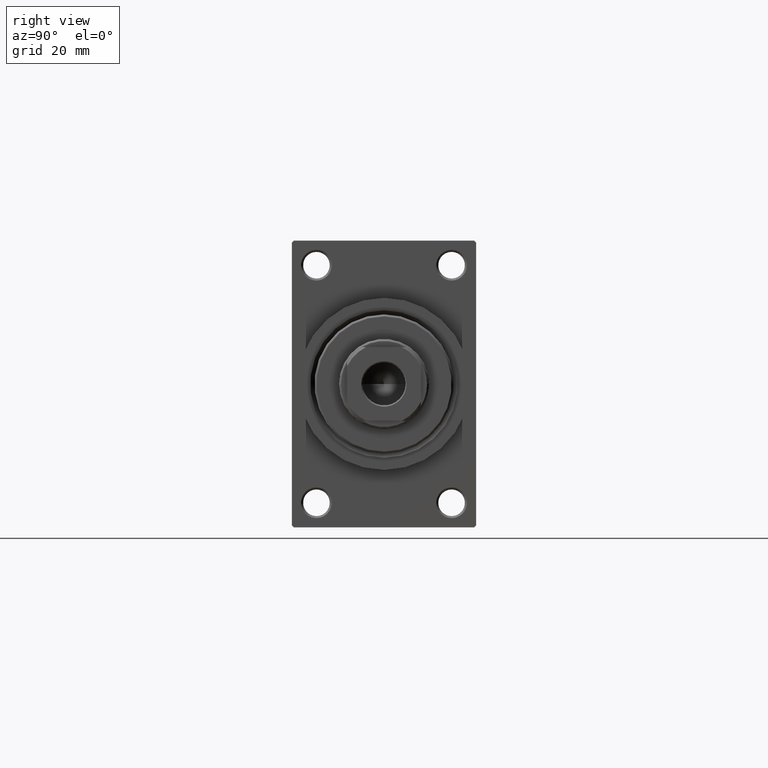
[diagram: clean part render]
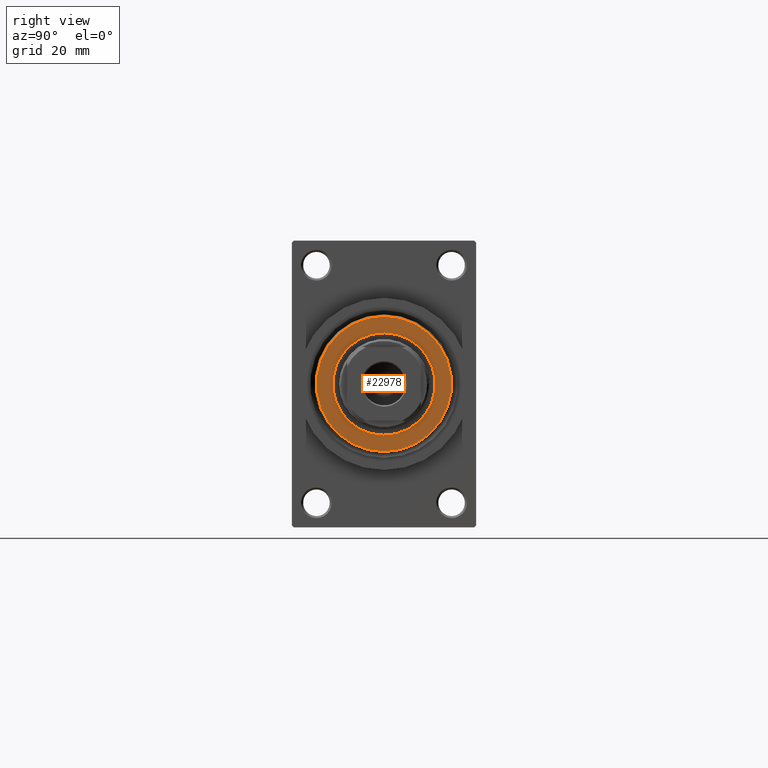
[diagram: same view with one face highlighted and labeled with its STEP entity id]
A machine part, right view. The second image highlights one B-rep face of the part: STEP entity #22978.
In plain terms, the highlighted planar face has unit normal (1, -0, -0).
Its self-contained STEP definition (entity closure, byte-faithful):
#313 = EDGE_CURVE ( 'NONE', #45140, #8718, #30360, .T. ) ;
#476 = ORIENTED_EDGE ( 'NONE', *, *, #29986, .F. ) ;
#2596 = FACE_BOUND ( 'NONE', #39070, .T. ) ;
#3873 = CARTESIAN_POINT ( 'NONE',  ( -16.50000000000001421, 0.000000000000000000, 55.26000000000000512 ) ) ;
#8718 = VERTEX_POINT ( 'NONE', #30921 ) ;
#12367 = DIRECTION ( 'NONE',  ( 0.000000000000000000, 0.000000000000000000, 1.000000000000000000 ) ) ;
#13909 = ORIENTED_EDGE ( 'NONE', *, *, #28352, .F. ) ;
#13913 = CIRCLE ( 'NONE', #28359, 12.50000000000000000 ) ;
#17374 = PLANE ( 'NONE',  #20852 ) ;
#20712 = DIRECTION ( 'NONE',  ( 0.000000000000000000, 0.000000000000000000, 1.000000000000000000 ) ) ;
#20852 = AXIS2_PLACEMENT_3D ( 'NONE', #27862, #20712, #31916 ) ;
#22637 = VERTEX_POINT ( 'NONE', #42844 ) ;
#22978 = ADVANCED_FACE ( 'NONE', ( #2596, #24537 ), #17374, .T. ) ;
#24537 = FACE_OUTER_BOUND ( 'NONE', #45575, .T. ) ;
#26354 = AXIS2_PLACEMENT_3D ( 'NONE', #36813, #40380, #46844 ) ;
#27142 = DIRECTION ( 'NONE',  ( 1.000000000000000000, 0.000000000000000000, 0.000000000000000000 ) ) ;
#27210 = CARTESIAN_POINT ( 'NONE',  ( 0.000000000000000000, 0.000000000000000000, 55.26000000000000512 ) ) ;
#27862 = CARTESIAN_POINT ( 'NONE',  ( 0.000000000000000000, 0.000000000000000000, 55.26000000000000512 ) ) ;
#27882 = CIRCLE ( 'NONE', #26354, 16.50000000000001421 ) ;
#28259 = EDGE_CURVE ( 'NONE', #8718, #45140, #27882, .T. ) ;
#28352 = EDGE_CURVE ( 'NONE', #38134, #22637, #38587, .T. ) ;
#28359 = AXIS2_PLACEMENT_3D ( 'NONE', #40346, #29814, #33628 ) ;
#29814 = DIRECTION ( 'NONE',  ( 0.000000000000000000, 0.000000000000000000, 1.000000000000000000 ) ) ;
#29986 = EDGE_CURVE ( 'NONE', #22637, #38134, #13913, .T. ) ;
#30121 = ORIENTED_EDGE ( 'NONE', *, *, #313, .T. ) ;
#30360 = CIRCLE ( 'NONE', #46395, 16.50000000000001421 ) ;
#30921 = CARTESIAN_POINT ( 'NONE',  ( 16.50000000000001421, 2.051283388571817281E-15, 55.26000000000000512 ) ) ;
#31916 = DIRECTION ( 'NONE',  ( 1.000000000000000000, 0.000000000000000000, -0.000000000000000000 ) ) ;
#32069 = ORIENTED_EDGE ( 'NONE', *, *, #28259, .T. ) ;
#33192 = AXIS2_PLACEMENT_3D ( 'NONE', #27210, #41789, #44418 ) ;
#33628 = DIRECTION ( 'NONE',  ( 1.000000000000000000, 0.000000000000000000, 0.000000000000000000 ) ) ;
#36813 = CARTESIAN_POINT ( 'NONE',  ( 0.000000000000000000, 0.000000000000000000, 55.26000000000000512 ) ) ;
#38134 = VERTEX_POINT ( 'NONE', #39859 ) ;
#38587 = CIRCLE ( 'NONE', #33192, 12.50000000000000000 ) ;
#39070 = EDGE_LOOP ( 'NONE', ( #13909, #476 ) ) ;
#39859 = CARTESIAN_POINT ( 'NONE',  ( 12.50000000000000000, 0.000000000000000000, 55.26000000000000512 ) ) ;
#40346 = CARTESIAN_POINT ( 'NONE',  ( 0.000000000000000000, 0.000000000000000000, 55.26000000000000512 ) ) ;
#40380 = DIRECTION ( 'NONE',  ( 0.000000000000000000, 0.000000000000000000, 1.000000000000000000 ) ) ;
#41789 = DIRECTION ( 'NONE',  ( 0.000000000000000000, 0.000000000000000000, 1.000000000000000000 ) ) ;
#42844 = CARTESIAN_POINT ( 'NONE',  ( -12.50000000000000000, 1.530808498934191521E-15, 55.26000000000000512 ) ) ;
#44418 = DIRECTION ( 'NONE',  ( 1.000000000000000000, 0.000000000000000000, 0.000000000000000000 ) ) ;
#45058 = CARTESIAN_POINT ( 'NONE',  ( 0.000000000000000000, 0.000000000000000000, 55.26000000000000512 ) ) ;
#45140 = VERTEX_POINT ( 'NONE', #3873 ) ;
#45575 = EDGE_LOOP ( 'NONE', ( #30121, #32069 ) ) ;
#46395 = AXIS2_PLACEMENT_3D ( 'NONE', #45058, #12367, #27142 ) ;
#46844 = DIRECTION ( 'NONE',  ( 1.000000000000000000, 0.000000000000000000, 0.000000000000000000 ) ) ;